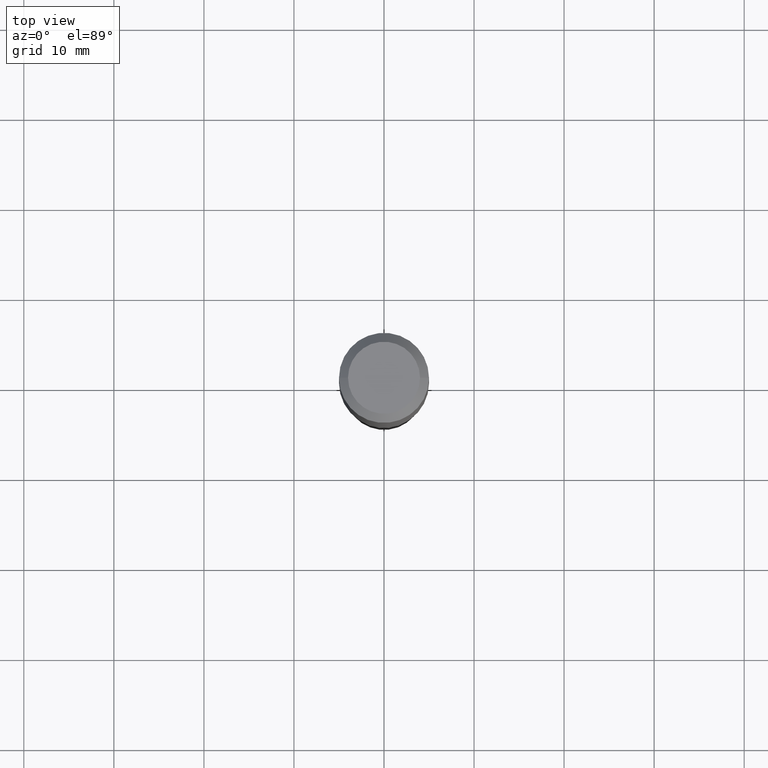
[diagram: clean part render]
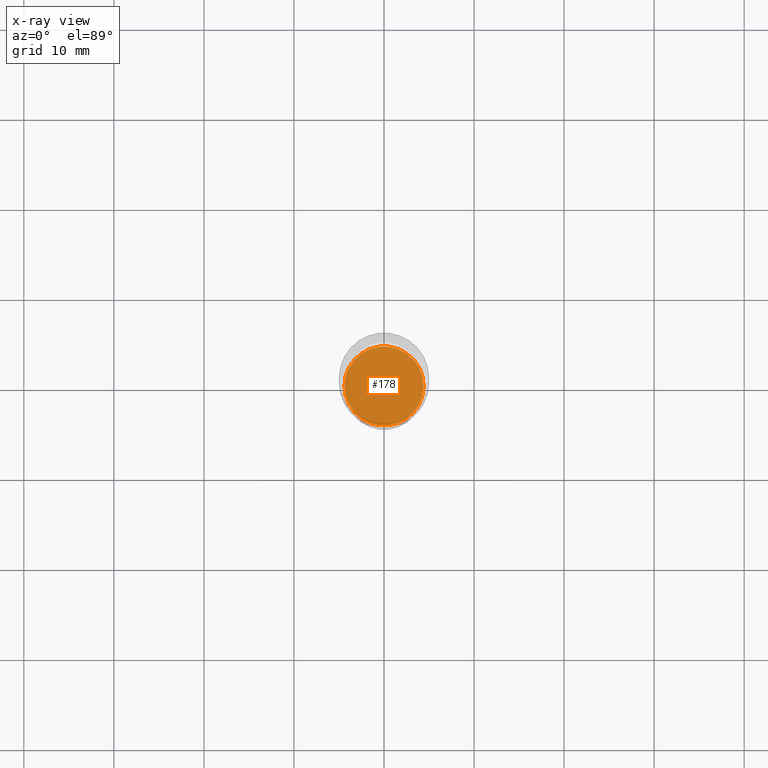
[diagram: x-ray — body ghosted, one internal face saturated and labeled with its STEP entity id]
A machine part, top view, then the same camera in x-ray: the body is ghosted and one INTERNAL B-rep face — a face not visible from any outside direction — is saturated and labeled: STEP entity #178.
In plain terms, the highlighted planar face has unit normal (-0, 0, 1).
Its self-contained STEP definition (entity closure, byte-faithful):
#15 = CIRCLE ( 'NONE', #493, 0.1727499999999999869 ) ;
#52 = ORIENTED_EDGE ( 'NONE', *, *, #375, .F. ) ;
#61 = DIRECTION ( 'NONE',  ( 1.000000000000000000, -6.982962677686265922E-15, 4.876176775795935793E-29 ) ) ;
#84 = DIRECTION ( 'NONE',  ( 1.000000000000000000, -6.982962677686266711E-15, 0.000000000000000000 ) ) ;
#90 = PLANE ( 'NONE',  #154 ) ;
#100 = CARTESIAN_POINT ( 'NONE',  ( -0.1727499999999999869, -6.125042785207288310E-15, -2.106600000000000250 ) ) ;
#108 = DIRECTION ( 'NONE',  ( -2.445468806185136597E-29, 3.491481338843145583E-15, 1.000000000000000000 ) ) ;
#134 = CIRCLE ( 'NONE', #202, 0.1727499999999999869 ) ;
#154 = AXIS2_PLACEMENT_3D ( 'NONE', #413, #250, #61 ) ;
#158 = DIRECTION ( 'NONE',  ( -2.445468806185136597E-29, 3.491481338843145583E-15, 1.000000000000000000 ) ) ;
#178 = ADVANCED_FACE ( 'NONE', ( #500 ), #90, .F. ) ;
#183 = VERTEX_POINT ( 'NONE', #206 ) ;
#202 = AXIS2_PLACEMENT_3D ( 'NONE', #385, #108, #308 ) ;
#206 = CARTESIAN_POINT ( 'NONE',  ( 0.1727499999999999869, -8.561461390977273068E-15, -2.106600000000000250 ) ) ;
#247 = EDGE_CURVE ( 'NONE', #183, #310, #134, .T. ) ;
#250 = DIRECTION ( 'NONE',  ( -2.438088387897960049E-29, 3.491481338843145188E-15, 1.000000000000000000 ) ) ;
#303 = ORIENTED_EDGE ( 'NONE', *, *, #247, .F. ) ;
#308 = DIRECTION ( 'NONE',  ( 1.000000000000000000, -6.982962677686266711E-15, 0.000000000000000000 ) ) ;
#310 = VERTEX_POINT ( 'NONE', #100 ) ;
#318 = EDGE_LOOP ( 'NONE', ( #303, #52 ) ) ;
#375 = EDGE_CURVE ( 'NONE', #310, #183, #15, .T. ) ;
#385 = CARTESIAN_POINT ( 'NONE',  ( 5.151624587109609366E-29, -7.355154588406970714E-15, -2.106600000000000250 ) ) ;
#413 = CARTESIAN_POINT ( 'NONE',  ( 7.477895418418439061E-29, -4.023802354859568557E-15, -2.106600000000000250 ) ) ;
#427 = CARTESIAN_POINT ( 'NONE',  ( 5.151624587109609366E-29, -7.355154588406970714E-15, -2.106600000000000250 ) ) ;
#493 = AXIS2_PLACEMENT_3D ( 'NONE', #427, #158, #84 ) ;
#500 = FACE_OUTER_BOUND ( 'NONE', #318, .T. ) ;